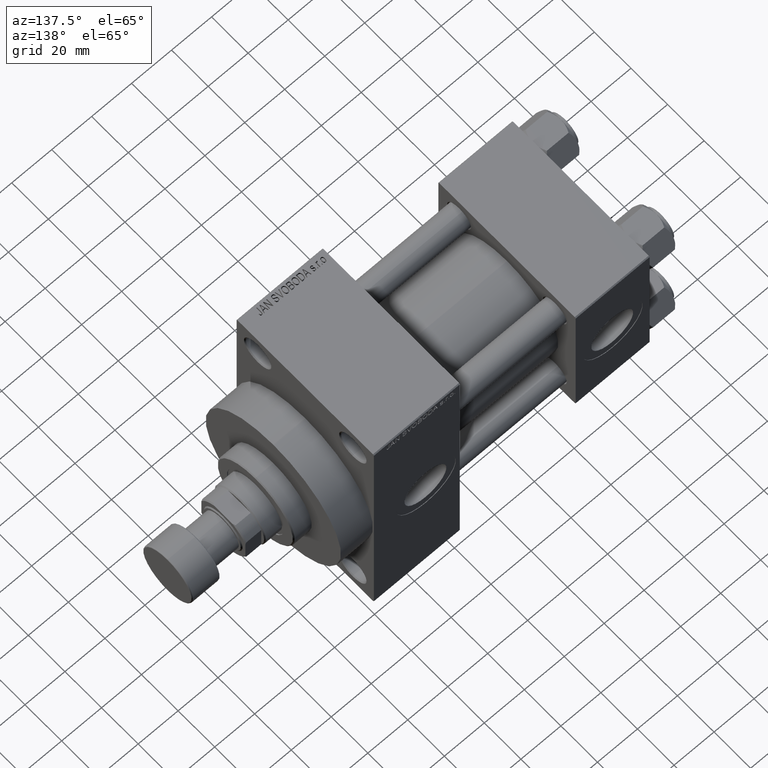
[diagram: clean part render]
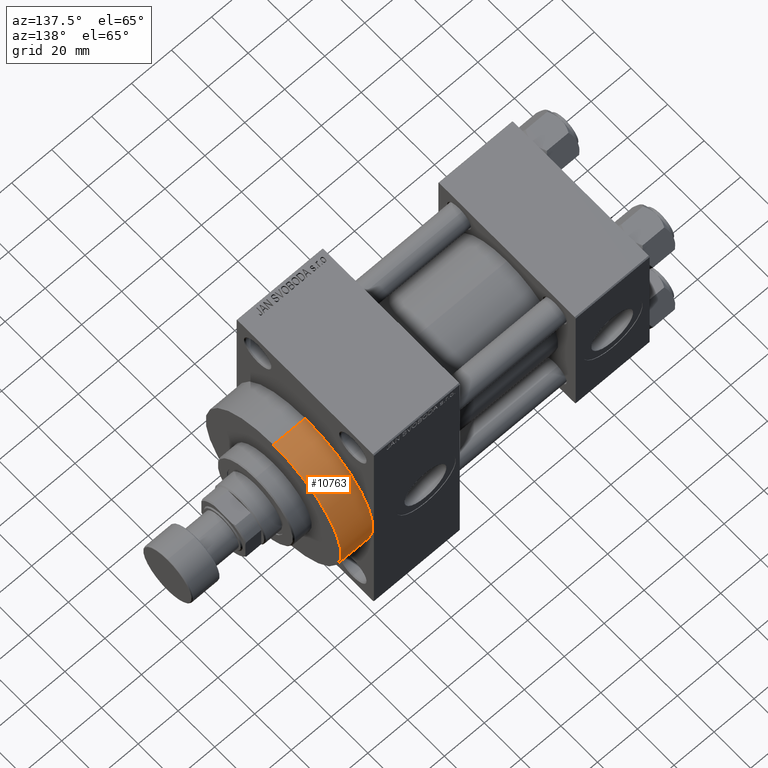
[diagram: same view with one face highlighted and labeled with its STEP entity id]
A machine part, auxiliary view. The second image highlights one B-rep face of the part: STEP entity #10763.
In plain terms, the highlighted cylindrical surface (partial cylindrical patch) has radius 37 mm, axis along (-1, -0, -0).
Its self-contained STEP definition (entity closure, byte-faithful):
#1459 = CARTESIAN_POINT ( 'NONE',  ( 138.0000000000000000, 0.000000000000000000, 37.00000000000000000 ) ) ;
#1757 = EDGE_CURVE ( 'NONE', #36720, #42076, #16987, .T. ) ;
#3768 = DIRECTION ( 'NONE',  ( 0.000000000000000000, 0.000000000000000000, -1.000000000000000000 ) ) ;
#3838 = CARTESIAN_POINT ( 'NONE',  ( 154.0000000000000284, 0.000000000000000000, 37.00000000000000000 ) ) ;
#4949 = EDGE_CURVE ( 'NONE', #38925, #36720, #43293, .T. ) ;
#6210 = LINE ( 'NONE', #3838, #36076 ) ;
#6650 = AXIS2_PLACEMENT_3D ( 'NONE', #7896, #8646, #35567 ) ;
#7896 = CARTESIAN_POINT ( 'NONE',  ( 154.0000000000000284, 0.000000000000000000, 0.000000000000000000 ) ) ;
#8646 = DIRECTION ( 'NONE',  ( -1.000000000000000000, -0.000000000000000000, -0.000000000000000000 ) ) ;
#9627 = DIRECTION ( 'NONE',  ( 1.000000000000000000, 0.000000000000000000, 0.000000000000000000 ) ) ;
#10763 = ADVANCED_FACE ( 'NONE', ( #27755 ), #38337, .T. ) ;
#11779 = ORIENTED_EDGE ( 'NONE', *, *, #1757, .T. ) ;
#16987 = CIRCLE ( 'NONE', #45102, 37.00000000000000000 ) ;
#21523 = CARTESIAN_POINT ( 'NONE',  ( 154.0000000000000284, 0.000000000000000000, 37.00000000000000000 ) ) ;
#21801 = AXIS2_PLACEMENT_3D ( 'NONE', #33961, #37729, #3768 ) ;
#24722 = CARTESIAN_POINT ( 'NONE',  ( 138.0000000000000000, 0.000000000000000000, 0.000000000000000000 ) ) ;
#25311 = DIRECTION ( 'NONE',  ( -1.000000000000000000, -0.000000000000000000, -0.000000000000000000 ) ) ;
#27755 = FACE_OUTER_BOUND ( 'NONE', #47229, .T. ) ;
#29144 = ORIENTED_EDGE ( 'NONE', *, *, #45516, .F. ) ;
#31965 = DIRECTION ( 'NONE',  ( -1.000000000000000000, -0.000000000000000000, -0.000000000000000000 ) ) ;
#32251 = CIRCLE ( 'NONE', #21801, 37.00000000000000000 ) ;
#33961 = CARTESIAN_POINT ( 'NONE',  ( 154.0000000000000284, 0.000000000000000000, 0.000000000000000000 ) ) ;
#34427 = VERTEX_POINT ( 'NONE', #21523 ) ;
#34533 = CARTESIAN_POINT ( 'NONE',  ( 154.0000000000000284, 4.531193156845206793E-15, -37.00000000000000000 ) ) ;
#35103 = EDGE_CURVE ( 'NONE', #38925, #34427, #32251, .T. ) ;
#35567 = DIRECTION ( 'NONE',  ( 0.000000000000000000, 0.000000000000000000, 1.000000000000000000 ) ) ;
#35718 = ORIENTED_EDGE ( 'NONE', *, *, #35103, .F. ) ;
#36076 = VECTOR ( 'NONE', #25311, 1000.000000000000000 ) ;
#36544 = DIRECTION ( 'NONE',  ( 0.000000000000000000, 0.000000000000000000, -1.000000000000000000 ) ) ;
#36720 = VERTEX_POINT ( 'NONE', #46165 ) ;
#37729 = DIRECTION ( 'NONE',  ( 1.000000000000000000, 0.000000000000000000, 0.000000000000000000 ) ) ;
#37905 = VECTOR ( 'NONE', #31965, 1000.000000000000000 ) ;
#38337 = CYLINDRICAL_SURFACE ( 'NONE', #6650, 37.00000000000000000 ) ;
#38925 = VERTEX_POINT ( 'NONE', #34533 ) ;
#41234 = ORIENTED_EDGE ( 'NONE', *, *, #4949, .T. ) ;
#42076 = VERTEX_POINT ( 'NONE', #1459 ) ;
#43293 = LINE ( 'NONE', #46831, #37905 ) ;
#45102 = AXIS2_PLACEMENT_3D ( 'NONE', #24722, #9627, #36544 ) ;
#45516 = EDGE_CURVE ( 'NONE', #34427, #42076, #6210, .T. ) ;
#46165 = CARTESIAN_POINT ( 'NONE',  ( 138.0000000000000000, 4.531193156845206793E-15, -37.00000000000000000 ) ) ;
#46831 = CARTESIAN_POINT ( 'NONE',  ( 154.0000000000000284, 4.531193156845206793E-15, -37.00000000000000000 ) ) ;
#47229 = EDGE_LOOP ( 'NONE', ( #35718, #41234, #11779, #29144 ) ) ;